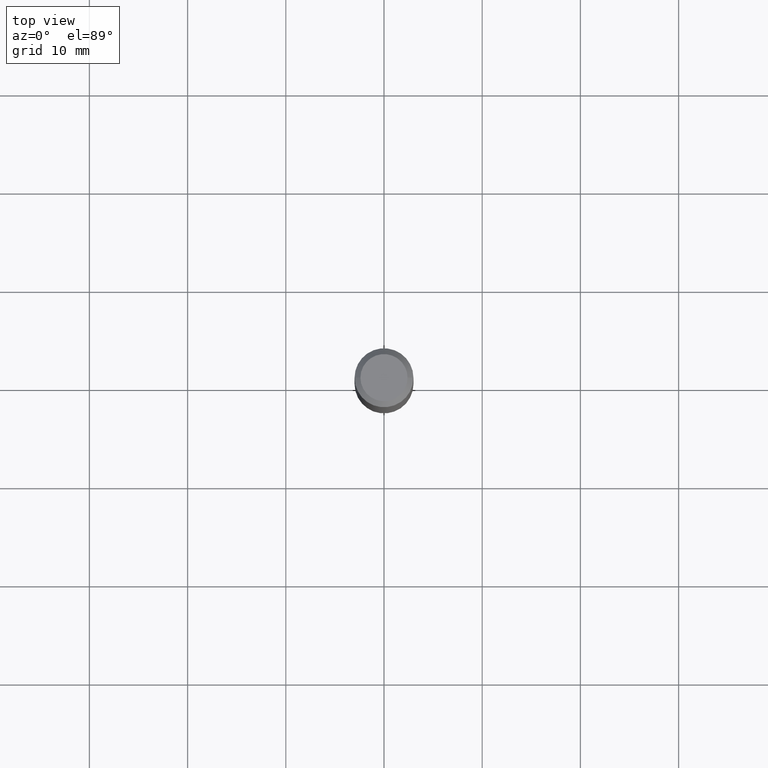
[diagram: clean part render]
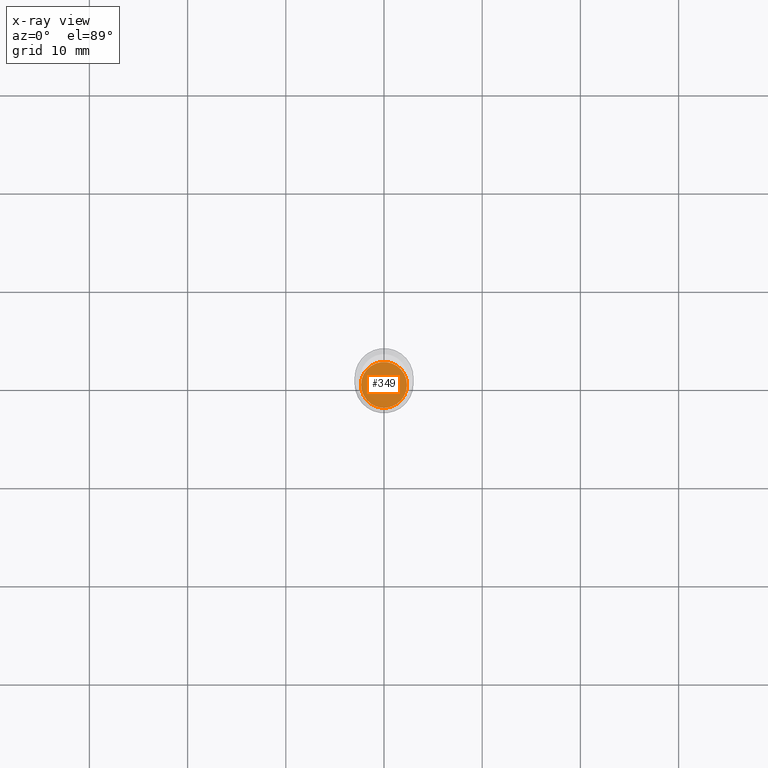
[diagram: x-ray — body ghosted, one internal face saturated and labeled with its STEP entity id]
A machine part, top view, then the same camera in x-ray: the body is ghosted and one INTERNAL B-rep face — a face not visible from any outside direction — is saturated and labeled: STEP entity #349.
In plain terms, the highlighted planar face has unit normal (-0, 0, 1).
Its self-contained STEP definition (entity closure, byte-faithful):
#7 = ORIENTED_EDGE ( 'NONE', *, *, #266, .F. ) ;
#10 = CIRCLE ( 'NONE', #348, 0.09199999999999999845 ) ;
#12 = CIRCLE ( 'NONE', #453, 0.09199999999999999845 ) ;
#19 = DIRECTION ( 'NONE',  ( -2.438088387897960049E-29, 3.491481338843145188E-15, 1.000000000000000000 ) ) ;
#118 = VERTEX_POINT ( 'NONE', #279 ) ;
#143 = CARTESIAN_POINT ( 'NONE',  ( 4.111077610077833736E-29, -5.869529278729212802E-15, -1.681100000000000261 ) ) ;
#147 = DIRECTION ( 'NONE',  ( -2.445468806185136597E-29, 3.491481338843145583E-15, 1.000000000000000000 ) ) ;
#150 = DIRECTION ( 'NONE',  ( 1.000000000000000000, -6.982962677686269866E-15, 0.000000000000000000 ) ) ;
#207 = PLANE ( 'NONE',  #305 ) ;
#221 = DIRECTION ( 'NONE',  ( 1.000000000000000000, -6.982962677686269866E-15, 0.000000000000000000 ) ) ;
#240 = FACE_OUTER_BOUND ( 'NONE', #258, .T. ) ;
#258 = EDGE_LOOP ( 'NONE', ( #304, #7 ) ) ;
#266 = EDGE_CURVE ( 'NONE', #118, #398, #12, .T. ) ;
#279 = CARTESIAN_POINT ( 'NONE',  ( -0.09199999999999999845, -5.213180734655809638E-15, -1.681100000000000261 ) ) ;
#290 = DIRECTION ( 'NONE',  ( -2.445468806185136597E-29, 3.491481338843145583E-15, 1.000000000000000000 ) ) ;
#304 = ORIENTED_EDGE ( 'NONE', *, *, #392, .F. ) ;
#305 = AXIS2_PLACEMENT_3D ( 'NONE', #356, #19, #469 ) ;
#348 = AXIS2_PLACEMENT_3D ( 'NONE', #143, #147, #221 ) ;
#349 = ADVANCED_FACE ( 'NONE', ( #240 ), #207, .F. ) ;
#356 = CARTESIAN_POINT ( 'NONE',  ( 4.111077610077833736E-29, -5.869529278729212802E-15, -1.681100000000000261 ) ) ;
#392 = EDGE_CURVE ( 'NONE', #398, #118, #10, .T. ) ;
#395 = CARTESIAN_POINT ( 'NONE',  ( 4.111077610077833736E-29, -5.869529278729212802E-15, -1.681100000000000261 ) ) ;
#398 = VERTEX_POINT ( 'NONE', #484 ) ;
#453 = AXIS2_PLACEMENT_3D ( 'NONE', #395, #290, #150 ) ;
#469 = DIRECTION ( 'NONE',  ( 1.000000000000000000, -6.982962677686265922E-15, 4.876176775795935793E-29 ) ) ;
#484 = CARTESIAN_POINT ( 'NONE',  ( 0.09199999999999999845, -6.511961845076349781E-15, -1.681100000000000261 ) ) ;